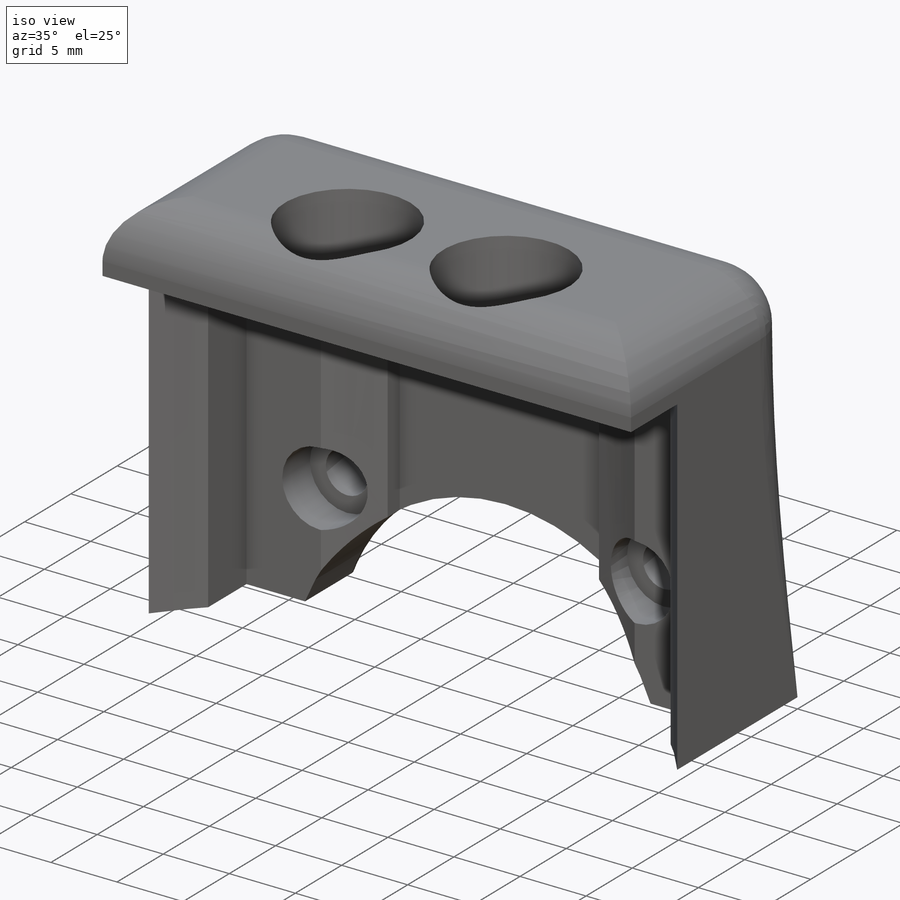
[diagram: iso view]
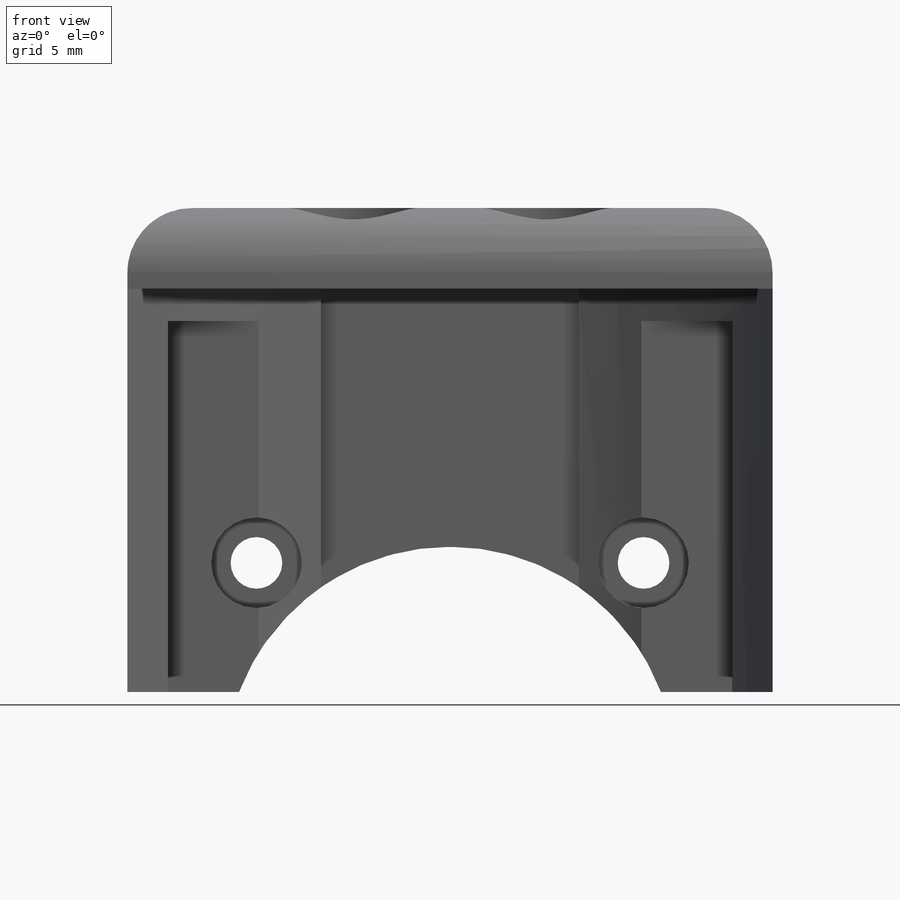
[diagram: front view]
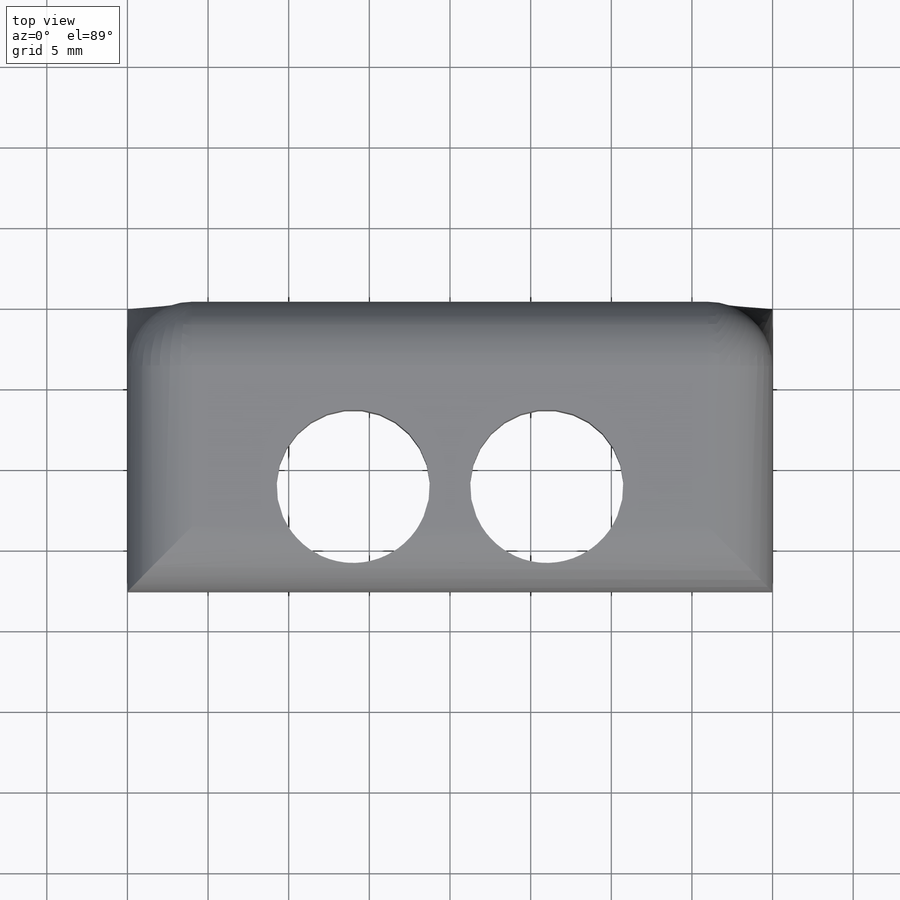
[diagram: top view]
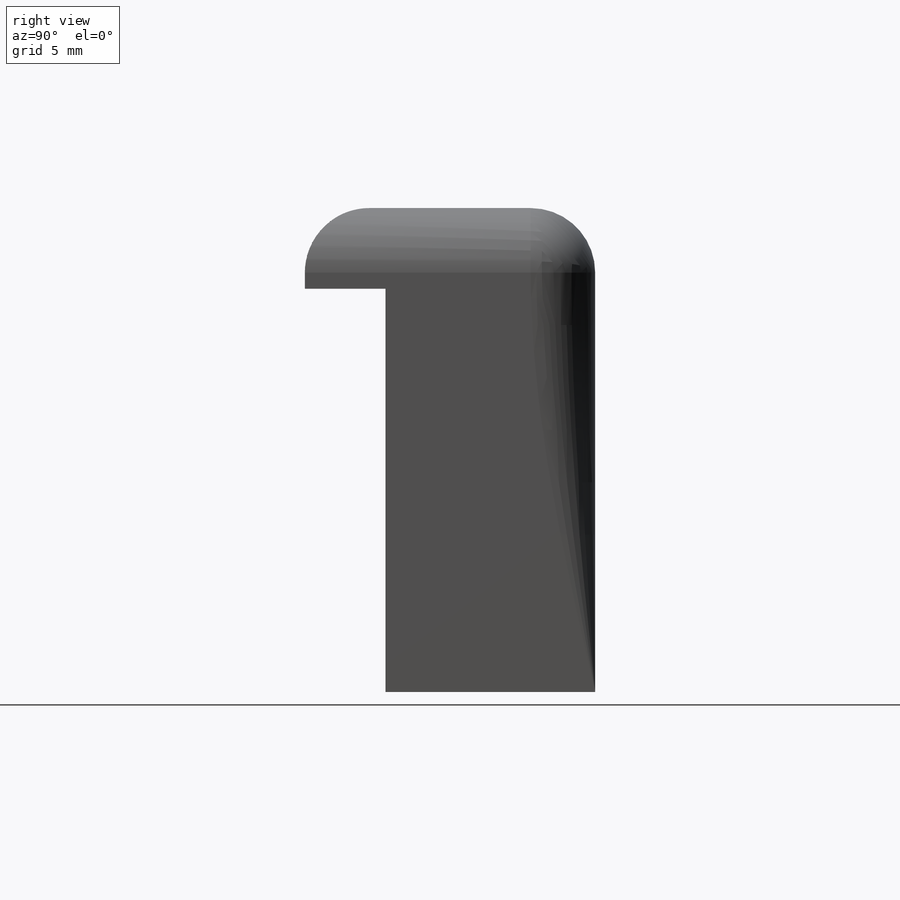
[diagram: right view]
SOLIDWORKS PART (.sldprt)
format: sldprt  version: not decoded by parser v0  size: 371,712 bytes
history: native  units: mm
features: sketch x9, cut_extrude x5, extrude x3, fillet x2, material x1 (+11 scaffold rows collapsed)
feature tree (31):
  scaffold x11  (default folders/planes/origin — collapsed)
  material  "Material <not specified>"
  sketch  "Sketch2"  dims[D3=28.0mm D1=30.0mm D2=40.0mm D4=20.0mm D5=35.0mm]
  extrude  "Boss-Extrude1"  Depth=3mm
  sketch  "Sketch3"  dims[D1=5.0mm D2=40.0mm]
  extrude  "Boss-Extrude2"  Depth=15mm
  sketch  "Sketch4"  dims[D1=9.5mm D2=12.0mm D3=14.0mm D4=6.5mm]
  cut_extrude  "Cut-Extrude1"  [1 undecoded]
  sketch  "Sketch5"  dims[D2=50.0mm D1=20.0mm D3=12.0mm D4=12.0mm]
  extrude  "Boss-Extrude10"  [1 undecoded]
  sketch  "Sketch6"
  cut_extrude  "Cut-Extrude2"  [1 undecoded]
  sketch  "Sketch9"  dims[c1.D3=9.5mm c1.D1=35.0mm c1.D2=12.0mm c2.D3=2.5mm]
  cut_extrude  "Cut-Extrude3"  Depth=23mm
  sketch  "Sketch10"  dims[D1=3.2mm D2=24.0mm D3=8.0mm D4=22.0mm]
  cut_extrude  "Cut-Extrude4"  Depth=18mm
  sketch  "Sketch11"  dims[D1=5.6mm]
  cut_extrude  "Cut-Extrude5"  Depth=3mm
  fillet  "Fillet1"  Radius=4mm
  fillet  "Fillet2"  Radius=1mm
  sketch  "Sketch7"  dims[c1.D1=30.0mm c1.D2=5.0mm c1.D3=20.0mm c1.D4=30.0mm c1.D5=30.0mm c2.D5=135.0deg c2.D6=~8.438625mm c3.D6=45.0deg c3.D5=5.5mm c4.D6=~25.153027mm c5.D6=45.0deg c5.D7=6.0mm]
decode coverage: 15 of 19 modeling features carry decoded parameters
note: ~ marks probable driven/reference dimensions
note: 3 parameter values undecoded
summary: no parameter record found for 3 features
note: suppression state not decoded; provenance and decode notes live in map.json
